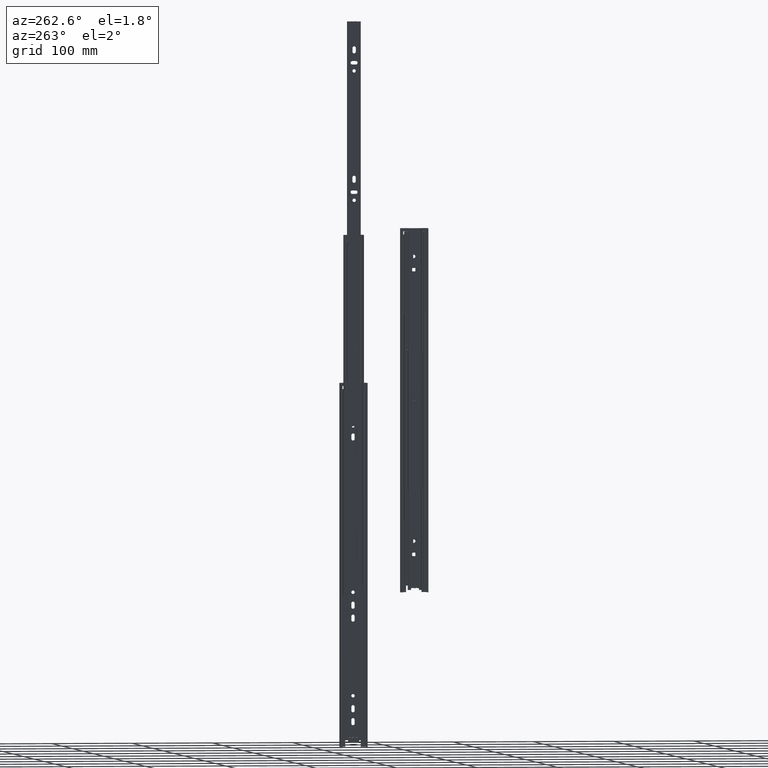
[diagram: clean part render]
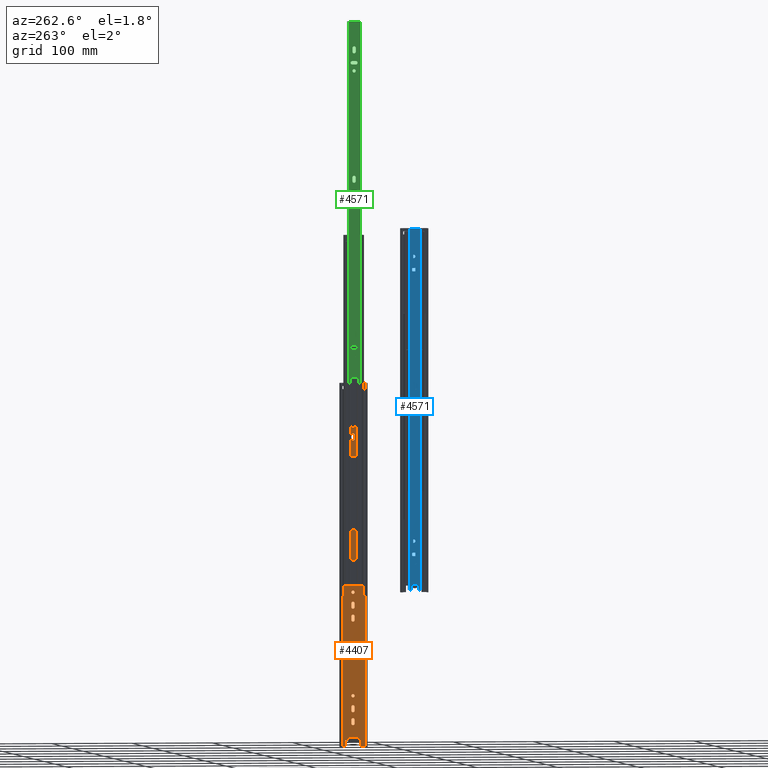
[diagram: same view with three faces highlighted in distinct colors, each labeled with its STEP entity id]
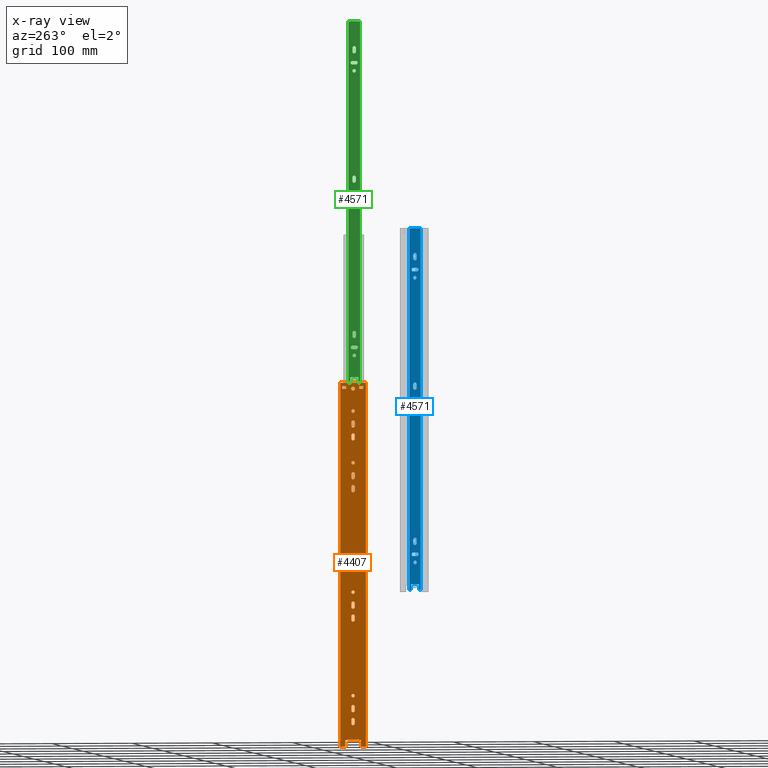
[diagram: x-ray of the same camera — body ghosted, the three highlighted faces saturated]
A machine part, auxiliary view with three faces highlighted in distinct colors.
The next image is the same camera in x-ray (body ghosted, the three faces saturated) — at least one of them is partly hidden behind the body in this view.
Their STEP definitions:

[orange] entity #4407 — the highlighted planar face has unit normal (-1, 0, 0).
#175=FACE_BOUND('',#670,.T.);
#176=FACE_BOUND('',#671,.T.);
#177=FACE_BOUND('',#672,.T.);
#178=FACE_BOUND('',#673,.T.);
#179=FACE_BOUND('',#674,.T.);
#180=FACE_BOUND('',#675,.T.);
#181=FACE_BOUND('',#676,.T.);
#182=FACE_BOUND('',#677,.T.);
#183=FACE_BOUND('',#678,.T.);
#184=FACE_BOUND('',#679,.T.);
#185=FACE_BOUND('',#680,.T.);
#186=FACE_BOUND('',#681,.T.);
#187=FACE_BOUND('',#682,.T.);
#188=FACE_BOUND('',#683,.T.);
#189=FACE_BOUND('',#684,.T.);
#244=CIRCLE('',#4660,2.15);
#245=CIRCLE('',#4661,2.14999999999999);
#246=CIRCLE('',#4662,2.15);
#247=CIRCLE('',#4663,2.15);
#248=CIRCLE('',#4664,2.15);
#249=CIRCLE('',#4665,2.15);
#250=CIRCLE('',#4666,2.15);
#251=CIRCLE('',#4667,2.15);
#252=CIRCLE('',#4668,2.4);
#253=CIRCLE('',#4669,2.15);
#254=CIRCLE('',#4670,2.15);
#255=CIRCLE('',#4671,2.15);
#256=CIRCLE('',#4672,2.15);
#257=CIRCLE('',#4673,2.15);
#258=CIRCLE('',#4674,2.15);
#259=CIRCLE('',#4675,2.15);
#260=CIRCLE('',#4676,2.15);
#261=CIRCLE('',#4677,2.15);
#262=CIRCLE('',#4678,2.15);
#263=CIRCLE('',#4679,2.15);
#264=CIRCLE('',#4680,2.15);
#431=FACE_OUTER_BOUND('',#669,.T.);
#669=EDGE_LOOP('',(#3019,#3020,#3021,#3022,#3023,#3024,#3025,#3026,#3027,
#3028,#3029,#3030));
#670=EDGE_LOOP('',(#3031,#3032,#3033,#3034));
#671=EDGE_LOOP('',(#3035,#3036,#3037,#3038));
#672=EDGE_LOOP('',(#3039,#3040,#3041,#3042));
#673=EDGE_LOOP('',(#3043,#3044,#3045,#3046));
#674=EDGE_LOOP('',(#3047));
#675=EDGE_LOOP('',(#3048,#3049,#3050,#3051));
#676=EDGE_LOOP('',(#3052));
#677=EDGE_LOOP('',(#3053));
#678=EDGE_LOOP('',(#3054));
#679=EDGE_LOOP('',(#3055));
#680=EDGE_LOOP('',(#3056,#3057,#3058,#3059));
#681=EDGE_LOOP('',(#3060,#3061,#3062,#3063));
#682=EDGE_LOOP('',(#3064,#3065,#3066,#3067));
#683=EDGE_LOOP('',(#3068,#3069,#3070,#3071));
#684=EDGE_LOOP('',(#3072,#3073,#3074,#3075));
#973=LINE('',#6519,#1437);
#974=LINE('',#6524,#1438);
#975=LINE('',#6527,#1439);
#976=LINE('',#6529,#1440);
#977=LINE('',#6531,#1441);
#978=LINE('',#6533,#1442);
#979=LINE('',#6535,#1443);
#980=LINE('',#6537,#1444);
#981=LINE('',#6539,#1445);
#982=LINE('',#6541,#1446);
#983=LINE('',#6543,#1447);
#984=LINE('',#6544,#1448);
#985=LINE('',#6549,#1449);
#986=LINE('',#6552,#1450);
#987=LINE('',#6557,#1451);
#988=LINE('',#6560,#1452);
#989=LINE('',#6565,#1453);
#990=LINE('',#6568,#1454);
#991=LINE('',#6573,#1455);
#992=LINE('',#6576,#1456);
#993=LINE('',#6581,#1457);
#994=LINE('',#6583,#1458);
#995=LINE('',#6585,#1459);
#996=LINE('',#6586,#1460);
#997=LINE('',#6597,#1461);
#998=LINE('',#6599,#1462);
#999=LINE('',#6601,#1463);
#1000=LINE('',#6602,#1464);
#1001=LINE('',#6607,#1465);
#1002=LINE('',#6610,#1466);
#1003=LINE('',#6615,#1467);
#1004=LINE('',#6618,#1468);
#1005=LINE('',#6623,#1469);
#1006=LINE('',#6626,#1470);
#1007=LINE('',#6631,#1471);
#1008=LINE('',#6634,#1472);
#1437=VECTOR('',#5139,15.);
#1438=VECTOR('',#5146,1.00000000000001);
#1439=VECTOR('',#5149,1.00000000000001);
#1440=VECTOR('',#5150,2.24999999999883);
#1441=VECTOR('',#5151,7.99999999999997);
#1442=VECTOR('',#5152,6.2500000000009);
#1443=VECTOR('',#5153,450.);
#1444=VECTOR('',#5154,31.9999999999994);
#1445=VECTOR('',#5155,450.);
#1446=VECTOR('',#5156,6.25000000000089);
#1447=VECTOR('',#5157,7.99999999999997);
#1448=VECTOR('',#5158,2.24999999999876);
#1449=VECTOR('',#5161,4.49999999999996);
#1450=VECTOR('',#5164,4.49999999999996);
#1451=VECTOR('',#5167,4.49999999999999);
#1452=VECTOR('',#5170,4.49999999999999);
#1453=VECTOR('',#5173,4.49999999999996);
#1454=VECTOR('',#5176,4.49999999999999);
#1455=VECTOR('',#5179,4.49999999999999);
#1456=VECTOR('',#5182,4.49999999999999);
#1457=VECTOR('',#5185,4.80000000000001);
#1458=VECTOR('',#5186,3.70000000000001);
#1459=VECTOR('',#5187,4.8);
#1460=VECTOR('',#5188,3.70000000000001);
#1461=VECTOR('',#5197,4.8);
#1462=VECTOR('',#5198,3.70000000000001);
#1463=VECTOR('',#5199,4.8);
#1464=VECTOR('',#5200,3.70000000000001);
#1465=VECTOR('',#5203,4.49999999999999);
#1466=VECTOR('',#5206,4.49999999999999);
#1467=VECTOR('',#5209,4.50000000000001);
#1468=VECTOR('',#5212,4.49999999999998);
#1469=VECTOR('',#5215,4.49999999999999);
#1470=VECTOR('',#5218,4.49999999999999);
#1471=VECTOR('',#5221,4.49999999999996);
#1472=VECTOR('',#5224,4.49999999999996);
#1900=VERTEX_POINT('',#6516);
#1901=VERTEX_POINT('',#6518);
#1902=VERTEX_POINT('',#6522);
#1903=VERTEX_POINT('',#6526);
#1904=VERTEX_POINT('',#6528);
#1905=VERTEX_POINT('',#6530);
#1906=VERTEX_POINT('',#6532);
#1907=VERTEX_POINT('',#6534);
#1908=VERTEX_POINT('',#6536);
#1909=VERTEX_POINT('',#6538);
#1910=VERTEX_POINT('',#6540);
#1911=VERTEX_POINT('',#6542);
#1912=VERTEX_POINT('',#6545);
#1913=VERTEX_POINT('',#6546);
#1914=VERTEX_POINT('',#6548);
#1915=VERTEX_POINT('',#6550);
#1916=VERTEX_POINT('',#6553);
#1917=VERTEX_POINT('',#6554);
#1918=VERTEX_POINT('',#6556);
#1919=VERTEX_POINT('',#6558);
#1920=VERTEX_POINT('',#6561);
#1921=VERTEX_POINT('',#6562);
#1922=VERTEX_POINT('',#6564);
#1923=VERTEX_POINT('',#6566);
#1924=VERTEX_POINT('',#6569);
#1925=VERTEX_POINT('',#6570);
#1926=VERTEX_POINT('',#6572);
#1927=VERTEX_POINT('',#6574);
#1928=VERTEX_POINT('',#6577);
#1929=VERTEX_POINT('',#6579);
#1930=VERTEX_POINT('',#6580);
#1931=VERTEX_POINT('',#6582);
#1932=VERTEX_POINT('',#6584);
#1933=VERTEX_POINT('',#6587);
#1934=VERTEX_POINT('',#6589);
#1935=VERTEX_POINT('',#6591);
#1936=VERTEX_POINT('',#6593);
#1937=VERTEX_POINT('',#6595);
#1938=VERTEX_POINT('',#6596);
#1939=VERTEX_POINT('',#6598);
#1940=VERTEX_POINT('',#6600);
#1941=VERTEX_POINT('',#6603);
#1942=VERTEX_POINT('',#6604);
#1943=VERTEX_POINT('',#6606);
#1944=VERTEX_POINT('',#6608);
#1945=VERTEX_POINT('',#6611);
#1946=VERTEX_POINT('',#6612);
#1947=VERTEX_POINT('',#6614);
#1948=VERTEX_POINT('',#6616);
#1949=VERTEX_POINT('',#6619);
#1950=VERTEX_POINT('',#6620);
#1951=VERTEX_POINT('',#6622);
#1952=VERTEX_POINT('',#6624);
#1953=VERTEX_POINT('',#6627);
#1954=VERTEX_POINT('',#6628);
#1955=VERTEX_POINT('',#6630);
#1956=VERTEX_POINT('',#6632);
#2338=EDGE_CURVE('',#1901,#1900,#973,.T.);
#2341=EDGE_CURVE('',#1902,#1901,#974,.T.);
#2342=EDGE_CURVE('',#1900,#1903,#975,.T.);
#2343=EDGE_CURVE('',#1903,#1904,#976,.T.);
#2344=EDGE_CURVE('',#1904,#1905,#977,.T.);
#2345=EDGE_CURVE('',#1906,#1905,#978,.T.);
#2346=EDGE_CURVE('',#1906,#1907,#979,.T.);
#2347=EDGE_CURVE('',#1908,#1907,#980,.T.);
#2348=EDGE_CURVE('',#1909,#1908,#981,.T.);
#2349=EDGE_CURVE('',#1910,#1909,#982,.T.);
#2350=EDGE_CURVE('',#1910,#1911,#983,.T.);
#2351=EDGE_CURVE('',#1911,#1902,#984,.T.);
#2352=EDGE_CURVE('',#1912,#1913,#244,.T.);
#2353=EDGE_CURVE('',#1913,#1914,#985,.T.);
#2354=EDGE_CURVE('',#1914,#1915,#245,.T.);
#2355=EDGE_CURVE('',#1915,#1912,#986,.T.);
#2356=EDGE_CURVE('',#1916,#1917,#246,.T.);
#2357=EDGE_CURVE('',#1917,#1918,#987,.T.);
#2358=EDGE_CURVE('',#1918,#1919,#247,.T.);
#2359=EDGE_CURVE('',#1919,#1916,#988,.T.);
#2360=EDGE_CURVE('',#1920,#1921,#248,.T.);
#2361=EDGE_CURVE('',#1921,#1922,#989,.T.);
#2362=EDGE_CURVE('',#1922,#1923,#249,.T.);
#2363=EDGE_CURVE('',#1923,#1920,#990,.T.);
#2364=EDGE_CURVE('',#1924,#1925,#250,.T.);
#2365=EDGE_CURVE('',#1925,#1926,#991,.T.);
#2366=EDGE_CURVE('',#1926,#1927,#251,.T.);
#2367=EDGE_CURVE('',#1927,#1924,#992,.T.);
#2368=EDGE_CURVE('',#1928,#1928,#252,.T.);
#2369=EDGE_CURVE('',#1929,#1930,#993,.T.);
#2370=EDGE_CURVE('',#1930,#1931,#994,.T.);
#2371=EDGE_CURVE('',#1931,#1932,#995,.T.);
#2372=EDGE_CURVE('',#1932,#1929,#996,.T.);
#2373=EDGE_CURVE('',#1933,#1933,#253,.T.);
#2374=EDGE_CURVE('',#1934,#1934,#254,.T.);
#2375=EDGE_CURVE('',#1935,#1935,#255,.T.);
#2376=EDGE_CURVE('',#1936,#1936,#256,.T.);
#2377=EDGE_CURVE('',#1937,#1938,#997,.T.);
#2378=EDGE_CURVE('',#1938,#1939,#998,.T.);
#2379=EDGE_CURVE('',#1939,#1940,#999,.T.);
#2380=EDGE_CURVE('',#1940,#1937,#1000,.T.);
#2381=EDGE_CURVE('',#1941,#1942,#257,.T.);
#2382=EDGE_CURVE('',#1942,#1943,#1001,.T.);
#2383=EDGE_CURVE('',#1943,#1944,#258,.T.);
#2384=EDGE_CURVE('',#1944,#1941,#1002,.T.);
#2385=EDGE_CURVE('',#1945,#1946,#259,.T.);
#2386=EDGE_CURVE('',#1946,#1947,#1003,.T.);
#2387=EDGE_CURVE('',#1947,#1948,#260,.T.);
#2388=EDGE_CURVE('',#1948,#1945,#1004,.T.);
#2389=EDGE_CURVE('',#1949,#1950,#261,.T.);
#2390=EDGE_CURVE('',#1950,#1951,#1005,.T.);
#2391=EDGE_CURVE('',#1951,#1952,#262,.T.);
#2392=EDGE_CURVE('',#1952,#1949,#1006,.T.);
#2393=EDGE_CURVE('',#1953,#1954,#263,.T.);
#2394=EDGE_CURVE('',#1954,#1955,#1007,.T.);
#2395=EDGE_CURVE('',#1955,#1956,#264,.T.);
#2396=EDGE_CURVE('',#1956,#1953,#1008,.T.);
#3019=ORIENTED_EDGE('',*,*,#2341,.T.);
#3020=ORIENTED_EDGE('',*,*,#2338,.T.);
#3021=ORIENTED_EDGE('',*,*,#2342,.T.);
#3022=ORIENTED_EDGE('',*,*,#2343,.T.);
#3023=ORIENTED_EDGE('',*,*,#2344,.T.);
#3024=ORIENTED_EDGE('',*,*,#2345,.F.);
#3025=ORIENTED_EDGE('',*,*,#2346,.T.);
#3026=ORIENTED_EDGE('',*,*,#2347,.F.);
#3027=ORIENTED_EDGE('',*,*,#2348,.F.);
#3028=ORIENTED_EDGE('',*,*,#2349,.F.);
#3029=ORIENTED_EDGE('',*,*,#2350,.T.);
#3030=ORIENTED_EDGE('',*,*,#2351,.T.);
#3031=ORIENTED_EDGE('',*,*,#2352,.T.);
#3032=ORIENTED_EDGE('',*,*,#2353,.T.);
#3033=ORIENTED_EDGE('',*,*,#2354,.T.);
#3034=ORIENTED_EDGE('',*,*,#2355,.T.);
#3035=ORIENTED_EDGE('',*,*,#2356,.T.);
#3036=ORIENTED_EDGE('',*,*,#2357,.T.);
#3037=ORIENTED_EDGE('',*,*,#2358,.T.);
#3038=ORIENTED_EDGE('',*,*,#2359,.T.);
#3039=ORIENTED_EDGE('',*,*,#2360,.T.);
#3040=ORIENTED_EDGE('',*,*,#2361,.T.);
#3041=ORIENTED_EDGE('',*,*,#2362,.T.);
#3042=ORIENTED_EDGE('',*,*,#2363,.T.);
#3043=ORIENTED_EDGE('',*,*,#2364,.T.);
#3044=ORIENTED_EDGE('',*,*,#2365,.T.);
#3045=ORIENTED_EDGE('',*,*,#2366,.T.);
#3046=ORIENTED_EDGE('',*,*,#2367,.T.);
#3047=ORIENTED_EDGE('',*,*,#2368,.T.);
#3048=ORIENTED_EDGE('',*,*,#2369,.T.);
#3049=ORIENTED_EDGE('',*,*,#2370,.T.);
#3050=ORIENTED_EDGE('',*,*,#2371,.T.);
#3051=ORIENTED_EDGE('',*,*,#2372,.T.);
#3052=ORIENTED_EDGE('',*,*,#2373,.T.);
#3053=ORIENTED_EDGE('',*,*,#2374,.T.);
#3054=ORIENTED_EDGE('',*,*,#2375,.T.);
#3055=ORIENTED_EDGE('',*,*,#2376,.T.);
#3056=ORIENTED_EDGE('',*,*,#2377,.T.);
#3057=ORIENTED_EDGE('',*,*,#2378,.T.);
#3058=ORIENTED_EDGE('',*,*,#2379,.T.);
#3059=ORIENTED_EDGE('',*,*,#2380,.T.);
#3060=ORIENTED_EDGE('',*,*,#2381,.T.);
#3061=ORIENTED_EDGE('',*,*,#2382,.T.);
#3062=ORIENTED_EDGE('',*,*,#2383,.T.);
#3063=ORIENTED_EDGE('',*,*,#2384,.T.);
#3064=ORIENTED_EDGE('',*,*,#2385,.T.);
#3065=ORIENTED_EDGE('',*,*,#2386,.T.);
#3066=ORIENTED_EDGE('',*,*,#2387,.T.);
#3067=ORIENTED_EDGE('',*,*,#2388,.T.);
#3068=ORIENTED_EDGE('',*,*,#2389,.T.);
#3069=ORIENTED_EDGE('',*,*,#2390,.T.);
#3070=ORIENTED_EDGE('',*,*,#2391,.T.);
#3071=ORIENTED_EDGE('',*,*,#2392,.T.);
#3072=ORIENTED_EDGE('',*,*,#2393,.T.);
#3073=ORIENTED_EDGE('',*,*,#2394,.T.);
#3074=ORIENTED_EDGE('',*,*,#2395,.T.);
#3075=ORIENTED_EDGE('',*,*,#2396,.T.);
#4258=PLANE('',#4659);
#4407=ADVANCED_FACE('',(#431,#175,#176,#177,#178,#179,#180,#181,#182,#183,
#184,#185,#186,#187,#188,#189),#4258,.T.);
#4659=AXIS2_PLACEMENT_3D('',#6525,#5147,#5148);
#4660=AXIS2_PLACEMENT_3D('',#6547,#5159,#5160);
#4661=AXIS2_PLACEMENT_3D('',#6551,#5162,#5163);
#4662=AXIS2_PLACEMENT_3D('',#6555,#5165,#5166);
#4663=AXIS2_PLACEMENT_3D('',#6559,#5168,#5169);
#4664=AXIS2_PLACEMENT_3D('',#6563,#5171,#5172);
#4665=AXIS2_PLACEMENT_3D('',#6567,#5174,#5175);
#4666=AXIS2_PLACEMENT_3D('',#6571,#5177,#5178);
#4667=AXIS2_PLACEMENT_3D('',#6575,#5180,#5181);
#4668=AXIS2_PLACEMENT_3D('',#6578,#5183,#5184);
#4669=AXIS2_PLACEMENT_3D('',#6588,#5189,#5190);
#4670=AXIS2_PLACEMENT_3D('',#6590,#5191,#5192);
#4671=AXIS2_PLACEMENT_3D('',#6592,#5193,#5194);
#4672=AXIS2_PLACEMENT_3D('',#6594,#5195,#5196);
#4673=AXIS2_PLACEMENT_3D('',#6605,#5201,#5202);
#4674=AXIS2_PLACEMENT_3D('',#6609,#5204,#5205);
#4675=AXIS2_PLACEMENT_3D('',#6613,#5207,#5208);
#4676=AXIS2_PLACEMENT_3D('',#6617,#5210,#5211);
#4677=AXIS2_PLACEMENT_3D('',#6621,#5213,#5214);
#4678=AXIS2_PLACEMENT_3D('',#6625,#5216,#5217);
#4679=AXIS2_PLACEMENT_3D('',#6629,#5219,#5220);
#4680=AXIS2_PLACEMENT_3D('',#6633,#5222,#5223);
#5139=DIRECTION('',(0.,-1.,-6.88338275267587E-14));
#5146=DIRECTION('',(0.,-6.88338275267587E-14,1.));
#5147=DIRECTION('center_axis',(-1.,0.,0.));
#5148=DIRECTION('ref_axis',(0.,-1.,0.));
#5149=DIRECTION('',(0.,0.,-1.));
#5150=DIRECTION('',(0.,-1.,0.));
#5151=DIRECTION('',(0.,5.5511151231258E-16,-1.));
#5152=DIRECTION('',(0.,1.,0.));
#5153=DIRECTION('',(0.,0.,1.));
#5154=DIRECTION('',(0.,-1.,0.));
#5155=DIRECTION('',(0.,0.,1.));
#5156=DIRECTION('',(0.,1.,0.));
#5157=DIRECTION('',(0.,0.,1.));
#5158=DIRECTION('',(0.,-1.,0.));
#5159=DIRECTION('center_axis',(1.,0.,0.));
#5160=DIRECTION('ref_axis',(0.,-1.,0.));
#5161=DIRECTION('',(0.,-9.86864910777926E-15,-1.));
#5162=DIRECTION('center_axis',(1.,0.,0.));
#5163=DIRECTION('ref_axis',(0.,1.,0.));
#5164=DIRECTION('',(0.,4.93432455388963E-15,1.));
#5165=DIRECTION('center_axis',(1.,0.,0.));
#5166=DIRECTION('ref_axis',(0.,-1.,0.));
#5167=DIRECTION('',(0.,0.,-1.));
#5168=DIRECTION('center_axis',(1.,0.,0.));
#5169=DIRECTION('ref_axis',(0.,1.,0.));
#5170=DIRECTION('',(0.,0.,1.));
#5171=DIRECTION('center_axis',(1.,0.,0.));
#5172=DIRECTION('ref_axis',(0.,-1.,-8.26212483441976E-15));
#5173=DIRECTION('',(0.,0.,-1.));
#5174=DIRECTION('center_axis',(1.,0.,0.));
#5175=DIRECTION('ref_axis',(0.,1.,-1.65242496688395E-14));
#5176=DIRECTION('',(0.,0.,1.));
#5177=DIRECTION('center_axis',(1.,0.,0.));
#5178=DIRECTION('ref_axis',(0.,-1.,-4.13106241720989E-15));
#5179=DIRECTION('',(0.,0.,-1.));
#5180=DIRECTION('center_axis',(1.,0.,0.));
#5181=DIRECTION('ref_axis',(0.,1.,0.));
#5182=DIRECTION('',(0.,-4.93432455388958E-16,1.));
#5183=DIRECTION('center_axis',(1.,0.,0.));
#5184=DIRECTION('ref_axis',(0.,0.,1.));
#5185=DIRECTION('',(0.,-1.,-1.15648231731787E-16));
#5186=DIRECTION('',(0.,0.,-1.));
#5187=DIRECTION('',(0.,1.,-2.31296463463574E-16));
#5188=DIRECTION('',(0.,1.20024110770287E-15,1.));
#5189=DIRECTION('center_axis',(1.,0.,0.));
#5190=DIRECTION('ref_axis',(0.,0.,1.));
#5191=DIRECTION('center_axis',(1.,0.,0.));
#5192=DIRECTION('ref_axis',(0.,0.,1.));
#5193=DIRECTION('center_axis',(1.,0.,0.));
#5194=DIRECTION('ref_axis',(0.,0.,1.));
#5195=DIRECTION('center_axis',(1.,0.,0.));
#5196=DIRECTION('ref_axis',(0.,0.,1.));
#5197=DIRECTION('',(0.,-1.,-5.78241158658936E-16));
#5198=DIRECTION('',(0.,0.,-1.));
#5199=DIRECTION('',(0.,1.,0.));
#5200=DIRECTION('',(0.,0.,1.));
#5201=DIRECTION('center_axis',(1.,0.,0.));
#5202=DIRECTION('ref_axis',(0.,-1.,0.));
#5203=DIRECTION('',(0.,1.48029736616687E-15,-1.));
#5204=DIRECTION('center_axis',(1.,0.,0.));
#5205=DIRECTION('ref_axis',(0.,1.,0.));
#5206=DIRECTION('',(0.,-1.97372982155584E-15,1.));
#5207=DIRECTION('center_axis',(1.,0.,0.));
#5208=DIRECTION('ref_axis',(0.,-1.,0.));
#5209=DIRECTION('',(0.,1.97372982155583E-15,1.));
#5210=DIRECTION('center_axis',(1.,0.,0.));
#5211=DIRECTION('ref_axis',(0.,1.,8.26212483441975E-15));
#5212=DIRECTION('',(0.,-1.48029736616688E-15,-1.));
#5213=DIRECTION('center_axis',(1.,0.,0.));
#5214=DIRECTION('ref_axis',(0.,-1.,0.));
#5215=DIRECTION('',(0.,0.,1.));
#5216=DIRECTION('center_axis',(1.,0.,0.));
#5217=DIRECTION('ref_axis',(0.,1.,0.));
#5218=DIRECTION('',(0.,-4.93432455388959E-16,-1.));
#5219=DIRECTION('center_axis',(1.,0.,0.));
#5220=DIRECTION('ref_axis',(0.,-1.,0.));
#5221=DIRECTION('',(0.,-9.86864910777926E-16,1.));
#5222=DIRECTION('center_axis',(1.,0.,0.));
#5223=DIRECTION('ref_axis',(0.,1.,0.));
#5224=DIRECTION('',(0.,4.93432455388963E-16,-1.));
#6516=CARTESIAN_POINT('',(1.05129643338628,19.1493539975594,-216.));
#6518=CARTESIAN_POINT('',(1.05129643338628,34.1493539975594,-215.999999999999));
#6519=CARTESIAN_POINT('',(1.05129643338628,37.8683758177017,-215.999999999999));
#6522=CARTESIAN_POINT('',(1.05129643338628,34.1493539975594,-216.999999999999));
#6524=CARTESIAN_POINT('',(1.05129643338628,34.1493539975594,-216.999999999999));
#6525=CARTESIAN_POINT('Origin',(1.05129643338628,42.6493539975591,0.));
#6526=CARTESIAN_POINT('',(1.05129643338628,19.1493539975594,-217.));
#6527=CARTESIAN_POINT('',(1.05129643338628,19.1493539975594,-217.));
#6528=CARTESIAN_POINT('',(1.05129643338628,16.8993539975605,-217.));
#6529=CARTESIAN_POINT('',(1.05129643338628,29.7743539975598,-217.));
#6530=CARTESIAN_POINT('',(1.05129643338628,16.8993539975606,-225.));
#6531=CARTESIAN_POINT('',(1.05129643338628,16.8993539975605,-112.5));
#6532=CARTESIAN_POINT('',(1.05129643338628,10.6493539975597,-225.));
#6533=CARTESIAN_POINT('',(1.05129643338628,42.6493539975591,-225.));
#6534=CARTESIAN_POINT('',(1.05129643338628,10.6493539975597,225.));
#6535=CARTESIAN_POINT('',(1.05129643338628,10.6493539975597,0.));
#6536=CARTESIAN_POINT('',(1.05129643338628,42.6493539975591,225.));
#6537=CARTESIAN_POINT('',(1.05129643338628,42.6493539975591,225.));
#6538=CARTESIAN_POINT('',(1.05129643338628,42.6493539975591,-225.));
#6539=CARTESIAN_POINT('',(1.05129643338628,42.6493539975591,0.));
#6540=CARTESIAN_POINT('',(1.05129643338628,36.3993539975582,-225.));
#6541=CARTESIAN_POINT('',(1.05129643338628,42.6493539975591,-225.));
#6542=CARTESIAN_POINT('',(1.05129643338628,36.3993539975582,-217.));
#6543=CARTESIAN_POINT('',(1.05129643338628,36.3993539975582,-108.5));
#6544=CARTESIAN_POINT('',(1.05129643338628,29.7743539975598,-217.));
#6545=CARTESIAN_POINT('',(1.05129643338628,28.7993539975594,-191.75));
#6546=CARTESIAN_POINT('',(1.05129643338628,24.49935399756,-191.75));
#6547=CARTESIAN_POINT('Origin',(1.05129643338628,26.6493539975594,-191.75));
#6548=CARTESIAN_POINT('',(1.05129643338628,24.4993539975599,-196.25));
#6549=CARTESIAN_POINT('',(1.05129643338628,24.4993539975609,-98.1249999999999));
#6550=CARTESIAN_POINT('',(1.05129643338628,28.7993539975594,-196.25));
#6551=CARTESIAN_POINT('Origin',(1.05129643338628,26.6493539975594,-196.25));
#6552=CARTESIAN_POINT('',(1.05129643338628,28.7993539975599,-95.875));
#6553=CARTESIAN_POINT('',(1.05129643338628,28.7993539975594,-63.7500000000001));
#6554=CARTESIAN_POINT('',(1.05129643338628,24.4993539975594,-63.7500000000001));
#6555=CARTESIAN_POINT('Origin',(1.05129643338628,26.6493539975594,-63.7500000000001));
#6556=CARTESIAN_POINT('',(1.05129643338628,24.4993539975594,-68.2500000000001));
#6557=CARTESIAN_POINT('',(1.05129643338628,24.4993539975594,-34.125));
#6558=CARTESIAN_POINT('',(1.05129643338628,28.7993539975594,-68.2500000000001));
#6559=CARTESIAN_POINT('Origin',(1.05129643338628,26.6493539975594,-68.2500000000001));
#6560=CARTESIAN_POINT('',(1.05129643338628,28.7993539975594,-31.875));
#6561=CARTESIAN_POINT('',(1.05129643338628,28.7993539975594,96.25));
#6562=CARTESIAN_POINT('',(1.05129643338628,24.4993539975594,96.25));
#6563=CARTESIAN_POINT('Origin',(1.05129643338628,26.6493539975594,96.25));
#6564=CARTESIAN_POINT('',(1.05129643338628,24.4993539975594,91.7500000000001));
#6565=CARTESIAN_POINT('',(1.05129643338628,24.4993539975594,45.875));
#6566=CARTESIAN_POINT('',(1.05129643338628,28.7993539975594,91.75));
#6567=CARTESIAN_POINT('Origin',(1.05129643338628,26.6493539975594,91.75));
#6568=CARTESIAN_POINT('',(1.05129643338628,28.7993539975594,48.125));
#6569=CARTESIAN_POINT('',(1.05129643338628,28.7993539975594,160.25));
#6570=CARTESIAN_POINT('',(1.05129643338628,24.4993539975594,160.25));
#6571=CARTESIAN_POINT('Origin',(1.05129643338628,26.6493539975594,160.25));
#6572=CARTESIAN_POINT('',(1.05129643338628,24.4993539975594,155.75));
#6573=CARTESIAN_POINT('',(1.05129643338628,24.4993539975594,77.875));
#6574=CARTESIAN_POINT('',(1.05129643338628,28.7993539975594,155.75));
#6575=CARTESIAN_POINT('Origin',(1.05129643338628,26.6493539975594,155.75));
#6576=CARTESIAN_POINT('',(1.05129643338628,28.7993539975594,80.125));
#6577=CARTESIAN_POINT('',(1.05129643338628,26.6493539975594,215.2));
#6578=CARTESIAN_POINT('Origin',(1.05129643338628,26.6493539975594,217.6));
#6579=CARTESIAN_POINT('',(1.05129643338628,40.1493539975582,221.));
#6580=CARTESIAN_POINT('',(1.05129643338628,35.3493539975582,221.));
#6581=CARTESIAN_POINT('',(1.05129643338628,38.9993539975586,221.));
#6582=CARTESIAN_POINT('',(1.05129643338628,35.3493539975582,217.3));
#6583=CARTESIAN_POINT('',(1.05129643338628,35.3493539975582,108.65));
#6584=CARTESIAN_POINT('',(1.05129643338628,40.1493539975582,217.3));
#6585=CARTESIAN_POINT('',(1.05129643338628,41.3993539975587,217.3));
#6586=CARTESIAN_POINT('',(1.05129643338628,40.1493539975581,110.5));
#6587=CARTESIAN_POINT('',(1.05129643338628,26.6493539975594,-36.15));
#6588=CARTESIAN_POINT('Origin',(1.05129643338628,26.6493539975594,-34.));
#6589=CARTESIAN_POINT('',(1.05129643338628,26.6493539975594,187.85));
#6590=CARTESIAN_POINT('Origin',(1.05129643338628,26.6493539975594,190.));
#6591=CARTESIAN_POINT('',(1.05129643338628,26.6493539975594,123.85));
#6592=CARTESIAN_POINT('Origin',(1.05129643338628,26.6493539975594,126.));
#6593=CARTESIAN_POINT('',(1.05129643338628,26.6493539975594,-164.15));
#6594=CARTESIAN_POINT('Origin',(1.05129643338628,26.6493539975594,-162.));
#6595=CARTESIAN_POINT('',(1.05129643338628,18.9493539975597,221.));
#6596=CARTESIAN_POINT('',(1.05129643338628,14.1493539975597,221.));
#6597=CARTESIAN_POINT('',(1.05129643338628,28.3993539975593,221.));
#6598=CARTESIAN_POINT('',(1.05129643338628,14.1493539975597,217.3));
#6599=CARTESIAN_POINT('',(1.05129643338628,14.1493539975597,108.65));
#6600=CARTESIAN_POINT('',(1.05129643338628,18.9493539975597,217.3));
#6601=CARTESIAN_POINT('',(1.05129643338628,30.7993539975594,217.3));
#6602=CARTESIAN_POINT('',(1.05129643338628,18.9493539975597,110.5));
#6603=CARTESIAN_POINT('',(1.05129643338628,28.7993539975594,176.25));
#6604=CARTESIAN_POINT('',(1.05129643338628,24.4993539975594,176.25));
#6605=CARTESIAN_POINT('Origin',(1.05129643338628,26.6493539975594,176.25));
#6606=CARTESIAN_POINT('',(1.05129643338628,24.4993539975594,171.75));
#6607=CARTESIAN_POINT('',(1.05129643338628,24.4993539975595,85.875));
#6608=CARTESIAN_POINT('',(1.05129643338628,28.7993539975594,171.75));
#6609=CARTESIAN_POINT('Origin',(1.05129643338628,26.6493539975594,171.75));
#6610=CARTESIAN_POINT('',(1.05129643338628,28.7993539975595,88.125));
#6611=CARTESIAN_POINT('',(1.05129643338628,24.4993539975594,107.75));
#6612=CARTESIAN_POINT('',(1.05129643338628,28.7993539975594,107.75));
#6613=CARTESIAN_POINT('Origin',(1.05129643338628,26.6493539975594,107.75));
#6614=CARTESIAN_POINT('',(1.05129643338628,28.7993539975594,112.25));
#6615=CARTESIAN_POINT('',(1.05129643338628,28.7993539975593,56.125));
#6616=CARTESIAN_POINT('',(1.05129643338628,24.4993539975594,112.25));
#6617=CARTESIAN_POINT('Origin',(1.05129643338628,26.6493539975594,112.25));
#6618=CARTESIAN_POINT('',(1.05129643338628,24.4993539975593,53.875));
#6619=CARTESIAN_POINT('',(1.05129643338628,24.4993539975594,-52.25));
#6620=CARTESIAN_POINT('',(1.05129643338628,28.7993539975594,-52.25));
#6621=CARTESIAN_POINT('Origin',(1.05129643338628,26.6493539975594,-52.25));
#6622=CARTESIAN_POINT('',(1.05129643338628,28.7993539975594,-47.75));
#6623=CARTESIAN_POINT('',(1.05129643338628,28.7993539975594,-23.875));
#6624=CARTESIAN_POINT('',(1.05129643338628,24.4993539975594,-47.75));
#6625=CARTESIAN_POINT('Origin',(1.05129643338628,26.6493539975594,-47.75));
#6626=CARTESIAN_POINT('',(1.05129643338628,24.4993539975594,-26.125));
#6627=CARTESIAN_POINT('',(1.05129643338628,24.4993539975596,-180.25));
#6628=CARTESIAN_POINT('',(1.05129643338628,28.7993539975594,-180.25));
#6629=CARTESIAN_POINT('Origin',(1.05129643338628,26.6493539975594,-180.25));
#6630=CARTESIAN_POINT('',(1.05129643338628,28.7993539975594,-175.75));
#6631=CARTESIAN_POINT('',(1.05129643338628,28.7993539975593,-87.875));
#6632=CARTESIAN_POINT('',(1.05129643338628,24.4993539975596,-175.75));
#6633=CARTESIAN_POINT('Origin',(1.05129643338628,26.6493539975594,-175.75));
#6634=CARTESIAN_POINT('',(1.05129643338628,24.4993539975596,-90.125));

[blue] entity #4571 — the highlighted planar face has unit normal (-1, 0, 0).
#224=FACE_BOUND('',#883,.T.);
#225=FACE_BOUND('',#884,.T.);
#226=FACE_BOUND('',#885,.T.);
#227=FACE_BOUND('',#886,.T.);
#228=FACE_BOUND('',#887,.T.);
#229=FACE_BOUND('',#888,.T.);
#230=FACE_BOUND('',#889,.T.);
#231=FACE_BOUND('',#890,.T.);
#232=FACE_BOUND('',#891,.T.);
#328=CIRCLE('',#4866,2.15);
#330=CIRCLE('',#4870,2.15);
#332=CIRCLE('',#4874,2.15);
#334=CIRCLE('',#4878,2.15);
#336=CIRCLE('',#4882,2.15);
#338=CIRCLE('',#4886,2.14999999999995);
#340=CIRCLE('',#4890,2.15);
#342=CIRCLE('',#4893,2.15);
#344=CIRCLE('',#4896,2.15);
#346=CIRCLE('',#4899,2.15);
#348=CIRCLE('',#4903,2.15);
#350=CIRCLE('',#4907,2.15);
#352=CIRCLE('',#4911,2.15);
#354=CIRCLE('',#4915,2.15000000000001);
#356=CIRCLE('',#4919,2.14999999999999);
#595=FACE_OUTER_BOUND('',#882,.T.);
#882=EDGE_LOOP('',(#3888,#3889,#3890,#3891,#3892,#3893,#3894,#3895));
#883=EDGE_LOOP('',(#3896,#3897,#3898,#3899));
#884=EDGE_LOOP('',(#3900,#3901,#3902,#3903));
#885=EDGE_LOOP('',(#3904,#3905,#3906,#3907));
#886=EDGE_LOOP('',(#3908));
#887=EDGE_LOOP('',(#3909));
#888=EDGE_LOOP('',(#3910));
#889=EDGE_LOOP('',(#3911,#3912,#3913,#3914));
#890=EDGE_LOOP('',(#3915,#3916,#3917,#3918));
#891=EDGE_LOOP('',(#3919,#3920,#3921,#3922));
#1219=LINE('',#7204,#1683);
#1223=LINE('',#7214,#1687);
#1227=LINE('',#7228,#1691);
#1231=LINE('',#7238,#1695);
#1235=LINE('',#7252,#1699);
#1239=LINE('',#7262,#1703);
#1243=LINE('',#7291,#1707);
#1247=LINE('',#7301,#1711);
#1251=LINE('',#7315,#1715);
#1255=LINE('',#7325,#1719);
#1259=LINE('',#7339,#1723);
#1263=LINE('',#7349,#1727);
#1266=LINE('',#7357,#1730);
#1269=LINE('',#7363,#1733);
#1273=LINE('',#7370,#1737);
#1274=LINE('',#7373,#1738);
#1285=LINE('',#7409,#1749);
#1286=LINE('',#7412,#1750);
#1301=LINE('',#7457,#1765);
#1302=LINE('',#7459,#1766);
#1683=VECTOR('',#5809,4.50000000000003);
#1687=VECTOR('',#5821,4.50000000000003);
#1691=VECTOR('',#5833,4.5);
#1695=VECTOR('',#5845,4.5);
#1699=VECTOR('',#5857,4.5);
#1703=VECTOR('',#5869,4.5);
#1707=VECTOR('',#5899,4.50000000000003);
#1711=VECTOR('',#5911,4.50000000000003);
#1715=VECTOR('',#5923,4.50000000000001);
#1719=VECTOR('',#5935,4.50000000000001);
#1723=VECTOR('',#5947,4.50000000000003);
#1727=VECTOR('',#5959,4.50000000000003);
#1730=VECTOR('',#5964,10.);
#1733=VECTOR('',#5969,7.00000000000003);
#1737=VECTOR('',#5975,7.00000000000003);
#1738=VECTOR('',#5978,2.15000000000211);
#1749=VECTOR('',#6009,2.15000000000211);
#1750=VECTOR('',#6012,447.);
#1765=VECTOR('',#6065,447.);
#1766=VECTOR('',#6068,14.3000000000042);
#2125=VERTEX_POINT('',#7195);
#2126=VERTEX_POINT('',#7197);
#2128=VERTEX_POINT('',#7203);
#2130=VERTEX_POINT('',#7209);
#2133=VERTEX_POINT('',#7219);
#2134=VERTEX_POINT('',#7221);
#2136=VERTEX_POINT('',#7227);
#2138=VERTEX_POINT('',#7233);
#2141=VERTEX_POINT('',#7243);
#2142=VERTEX_POINT('',#7245);
#2144=VERTEX_POINT('',#7251);
#2146=VERTEX_POINT('',#7257);
#2148=VERTEX_POINT('',#7266);
#2150=VERTEX_POINT('',#7271);
#2152=VERTEX_POINT('',#7276);
#2155=VERTEX_POINT('',#7282);
#2156=VERTEX_POINT('',#7284);
#2158=VERTEX_POINT('',#7290);
#2160=VERTEX_POINT('',#7296);
#2163=VERTEX_POINT('',#7306);
#2164=VERTEX_POINT('',#7308);
#2166=VERTEX_POINT('',#7314);
#2168=VERTEX_POINT('',#7320);
#2171=VERTEX_POINT('',#7330);
#2172=VERTEX_POINT('',#7332);
#2174=VERTEX_POINT('',#7338);
#2176=VERTEX_POINT('',#7344);
#2179=VERTEX_POINT('',#7354);
#2180=VERTEX_POINT('',#7356);
#2182=VERTEX_POINT('',#7362);
#2184=VERTEX_POINT('',#7368);
#2185=VERTEX_POINT('',#7372);
#2200=VERTEX_POINT('',#7407);
#2201=VERTEX_POINT('',#7411);
#2212=VERTEX_POINT('',#7455);
#2668=EDGE_CURVE('',#2126,#2125,#328,.T.);
#2671=EDGE_CURVE('',#2128,#2126,#1219,.T.);
#2674=EDGE_CURVE('',#2130,#2128,#330,.T.);
#2677=EDGE_CURVE('',#2125,#2130,#1223,.T.);
#2680=EDGE_CURVE('',#2134,#2133,#332,.T.);
#2683=EDGE_CURVE('',#2136,#2134,#1227,.T.);
#2686=EDGE_CURVE('',#2138,#2136,#334,.T.);
#2689=EDGE_CURVE('',#2133,#2138,#1231,.T.);
#2692=EDGE_CURVE('',#2142,#2141,#336,.T.);
#2695=EDGE_CURVE('',#2144,#2142,#1235,.T.);
#2698=EDGE_CURVE('',#2146,#2144,#338,.T.);
#2701=EDGE_CURVE('',#2141,#2146,#1239,.T.);
#2703=EDGE_CURVE('',#2148,#2148,#340,.T.);
#2705=EDGE_CURVE('',#2150,#2150,#342,.T.);
#2707=EDGE_CURVE('',#2152,#2152,#344,.T.);
#2710=EDGE_CURVE('',#2156,#2155,#346,.T.);
#2713=EDGE_CURVE('',#2158,#2156,#1243,.T.);
#2716=EDGE_CURVE('',#2160,#2158,#348,.T.);
#2719=EDGE_CURVE('',#2155,#2160,#1247,.T.);
#2722=EDGE_CURVE('',#2164,#2163,#350,.T.);
#2725=EDGE_CURVE('',#2166,#2164,#1251,.T.);
#2728=EDGE_CURVE('',#2168,#2166,#352,.T.);
#2731=EDGE_CURVE('',#2163,#2168,#1255,.T.);
#2734=EDGE_CURVE('',#2172,#2171,#354,.T.);
#2737=EDGE_CURVE('',#2174,#2172,#1259,.T.);
#2740=EDGE_CURVE('',#2176,#2174,#356,.T.);
#2743=EDGE_CURVE('',#2171,#2176,#1263,.T.);
#2746=EDGE_CURVE('',#2180,#2179,#1266,.T.);
#2749=EDGE_CURVE('',#2182,#2180,#1269,.T.);
#2753=EDGE_CURVE('',#2179,#2184,#1273,.T.);
#2754=EDGE_CURVE('',#2182,#2185,#1274,.T.);
#2773=EDGE_CURVE('',#2200,#2184,#1285,.T.);
#2774=EDGE_CURVE('',#2201,#2185,#1286,.T.);
#2797=EDGE_CURVE('',#2200,#2212,#1301,.T.);
#2798=EDGE_CURVE('',#2201,#2212,#1302,.T.);
#3888=ORIENTED_EDGE('',*,*,#2753,.T.);
#3889=ORIENTED_EDGE('',*,*,#2773,.F.);
#3890=ORIENTED_EDGE('',*,*,#2797,.T.);
#3891=ORIENTED_EDGE('',*,*,#2798,.F.);
#3892=ORIENTED_EDGE('',*,*,#2774,.T.);
#3893=ORIENTED_EDGE('',*,*,#2754,.F.);
#3894=ORIENTED_EDGE('',*,*,#2749,.T.);
#3895=ORIENTED_EDGE('',*,*,#2746,.T.);
#3896=ORIENTED_EDGE('',*,*,#2674,.T.);
#3897=ORIENTED_EDGE('',*,*,#2671,.T.);
#3898=ORIENTED_EDGE('',*,*,#2668,.T.);
#3899=ORIENTED_EDGE('',*,*,#2677,.T.);
#3900=ORIENTED_EDGE('',*,*,#2686,.T.);
#3901=ORIENTED_EDGE('',*,*,#2683,.T.);
#3902=ORIENTED_EDGE('',*,*,#2680,.T.);
#3903=ORIENTED_EDGE('',*,*,#2689,.T.);
#3904=ORIENTED_EDGE('',*,*,#2698,.T.);
#3905=ORIENTED_EDGE('',*,*,#2695,.T.);
#3906=ORIENTED_EDGE('',*,*,#2692,.T.);
#3907=ORIENTED_EDGE('',*,*,#2701,.T.);
#3908=ORIENTED_EDGE('',*,*,#2703,.T.);
#3909=ORIENTED_EDGE('',*,*,#2705,.T.);
#3910=ORIENTED_EDGE('',*,*,#2707,.T.);
#3911=ORIENTED_EDGE('',*,*,#2716,.T.);
#3912=ORIENTED_EDGE('',*,*,#2713,.T.);
#3913=ORIENTED_EDGE('',*,*,#2710,.T.);
#3914=ORIENTED_EDGE('',*,*,#2719,.T.);
#3915=ORIENTED_EDGE('',*,*,#2728,.T.);
#3916=ORIENTED_EDGE('',*,*,#2725,.T.);
#3917=ORIENTED_EDGE('',*,*,#2722,.T.);
#3918=ORIENTED_EDGE('',*,*,#2731,.T.);
#3919=ORIENTED_EDGE('',*,*,#2740,.T.);
#3920=ORIENTED_EDGE('',*,*,#2737,.T.);
#3921=ORIENTED_EDGE('',*,*,#2734,.T.);
#3922=ORIENTED_EDGE('',*,*,#2743,.T.);
#4357=PLANE('',#4955);
#4571=ADVANCED_FACE('',(#595,#224,#225,#226,#227,#228,#229,#230,#231,#232),
#4357,.T.);
#4866=AXIS2_PLACEMENT_3D('',#7198,#5803,#5804);
#4870=AXIS2_PLACEMENT_3D('',#7210,#5815,#5816);
#4874=AXIS2_PLACEMENT_3D('',#7222,#5827,#5828);
#4878=AXIS2_PLACEMENT_3D('',#7234,#5839,#5840);
#4882=AXIS2_PLACEMENT_3D('',#7246,#5851,#5852);
#4886=AXIS2_PLACEMENT_3D('',#7258,#5863,#5864);
#4890=AXIS2_PLACEMENT_3D('',#7267,#5874,#5875);
#4893=AXIS2_PLACEMENT_3D('',#7272,#5880,#5881);
#4896=AXIS2_PLACEMENT_3D('',#7277,#5886,#5887);
#4899=AXIS2_PLACEMENT_3D('',#7285,#5893,#5894);
#4903=AXIS2_PLACEMENT_3D('',#7297,#5905,#5906);
#4907=AXIS2_PLACEMENT_3D('',#7309,#5917,#5918);
#4911=AXIS2_PLACEMENT_3D('',#7321,#5929,#5930);
#4915=AXIS2_PLACEMENT_3D('',#7333,#5941,#5942);
#4919=AXIS2_PLACEMENT_3D('',#7345,#5953,#5954);
#4955=AXIS2_PLACEMENT_3D('',#7458,#6066,#6067);
#5803=DIRECTION('center_axis',(1.,0.,0.));
#5804=DIRECTION('ref_axis',(0.,1.,0.));
#5809=DIRECTION('',(0.,-2.46716227694478E-16,1.));
#5815=DIRECTION('center_axis',(1.,0.,0.));
#5816=DIRECTION('ref_axis',(0.,-1.,0.));
#5821=DIRECTION('',(0.,0.,-1.));
#5827=DIRECTION('center_axis',(1.,0.,0.));
#5828=DIRECTION('ref_axis',(0.,0.00289259726713504,0.999995816431774));
#5833=DIRECTION('',(0.,0.999995816431774,-0.00289259726713453));
#5839=DIRECTION('center_axis',(1.,0.,0.));
#5840=DIRECTION('ref_axis',(0.,-0.0028925972671356,-0.999995816431774));
#5845=DIRECTION('',(0.,-0.999995816431774,0.00289259726713453));
#5851=DIRECTION('center_axis',(1.,0.,0.));
#5852=DIRECTION('ref_axis',(0.,-5.16382802151227E-16,1.));
#5857=DIRECTION('',(0.,1.,1.57898385724467E-14));
#5863=DIRECTION('center_axis',(1.,0.,0.));
#5864=DIRECTION('ref_axis',(0.,2.58191401075622E-16,-1.));
#5869=DIRECTION('',(0.,-1.,0.));
#5874=DIRECTION('center_axis',(1.,0.,0.));
#5875=DIRECTION('ref_axis',(0.,0.,-1.));
#5880=DIRECTION('center_axis',(1.,0.,0.));
#5881=DIRECTION('ref_axis',(0.,0.,-1.));
#5886=DIRECTION('center_axis',(1.,0.,0.));
#5887=DIRECTION('ref_axis',(0.,0.,-1.));
#5893=DIRECTION('center_axis',(1.,0.,0.));
#5894=DIRECTION('ref_axis',(0.,1.,0.));
#5899=DIRECTION('',(0.,0.,1.));
#5905=DIRECTION('center_axis',(1.,0.,0.));
#5906=DIRECTION('ref_axis',(0.,-1.,0.));
#5911=DIRECTION('',(0.,4.93432455388955E-16,-1.));
#5917=DIRECTION('center_axis',(1.,0.,0.));
#5918=DIRECTION('ref_axis',(0.,0.,1.));
#5923=DIRECTION('',(0.,1.,0.));
#5929=DIRECTION('center_axis',(1.,0.,0.));
#5930=DIRECTION('ref_axis',(0.,0.,-1.));
#5935=DIRECTION('',(0.,-1.,-1.97372982155583E-15));
#5941=DIRECTION('center_axis',(1.,0.,0.));
#5942=DIRECTION('ref_axis',(0.,-1.,0.));
#5947=DIRECTION('',(0.,0.,1.));
#5953=DIRECTION('center_axis',(1.,0.,0.));
#5954=DIRECTION('ref_axis',(0.,1.,0.));
#5959=DIRECTION('',(0.,0.,-1.));
#5964=DIRECTION('',(0.,-1.,0.));
#5969=DIRECTION('',(0.,0.,1.));
#5975=DIRECTION('',(0.,-7.93016446160823E-17,-1.));
#5978=DIRECTION('',(0.,1.,0.));
#6009=DIRECTION('',(0.,1.,0.));
#6012=DIRECTION('',(0.,0.,-1.));
#6065=DIRECTION('',(0.,0.,1.));
#6066=DIRECTION('center_axis',(-1.,0.,0.));
#6067=DIRECTION('ref_axis',(0.,-1.,0.));
#6068=DIRECTION('',(0.,-1.,0.));
#7195=CARTESIAN_POINT('',(-10.7487035666121,24.6993539975594,30.75));
#7197=CARTESIAN_POINT('',(-10.7487035666121,28.9993539975594,30.75));
#7198=CARTESIAN_POINT('Origin',(-10.7487035666121,26.8493539975594,30.75));
#7203=CARTESIAN_POINT('',(-10.7487035666121,28.9993539975594,26.25));
#7204=CARTESIAN_POINT('',(-10.7487035666121,28.9993539975594,13.125));
#7209=CARTESIAN_POINT('',(-10.7487035666121,24.6993539975594,26.25));
#7210=CARTESIAN_POINT('Origin',(-10.7487035666121,26.8493539975594,26.25));
#7214=CARTESIAN_POINT('',(-10.7487035666121,24.6993539975594,15.375));
#7219=CARTESIAN_POINT('',(-10.7487035666121,29.1055636686552,14.6434826614773));
#7221=CARTESIAN_POINT('',(-10.7487035666121,29.0931255004065,10.3435006508207));
#7222=CARTESIAN_POINT('Origin',(-10.7487035666121,29.0993445845309,12.4934916561489));
#7227=CARTESIAN_POINT('',(-10.7487035666121,24.5931443264636,10.3565173385228));
#7228=CARTESIAN_POINT('',(-10.7487035666121,29.211189201498,10.3431591386528));
#7233=CARTESIAN_POINT('',(-10.7487035666121,24.6055824947122,14.6564993491794));
#7234=CARTESIAN_POINT('Origin',(-10.7487035666121,24.5993634105879,12.5065083438511));
#7238=CARTESIAN_POINT('',(-10.7487035666121,31.4736179567182,14.6366328054584));
#7243=CARTESIAN_POINT('',(-10.7487035666121,28.8993539975594,-177.35));
#7245=CARTESIAN_POINT('',(-10.7487035666121,28.8993539975594,-181.65));
#7246=CARTESIAN_POINT('Origin',(-10.7487035666121,28.8993539975594,-179.5));
#7251=CARTESIAN_POINT('',(-10.7487035666121,24.3993539975594,-181.65));
#7252=CARTESIAN_POINT('',(-10.7487035666121,29.0993539975619,-181.65));
#7257=CARTESIAN_POINT('',(-10.7487035666121,24.3993539975594,-177.35));
#7258=CARTESIAN_POINT('Origin',(-10.7487035666121,24.3993539975594,-179.5));
#7262=CARTESIAN_POINT('',(-10.7487035666121,31.3493539975605,-177.35));
#7266=CARTESIAN_POINT('',(-10.7487035666121,26.8493539975594,164.65));
#7267=CARTESIAN_POINT('Origin',(-10.7487035666121,26.8493539975594,162.5));
#7271=CARTESIAN_POINT('',(-10.7487035666121,26.6493539975594,-187.35));
#7272=CARTESIAN_POINT('Origin',(-10.7487035666121,26.6493539975594,-189.5));
#7276=CARTESIAN_POINT('',(-10.7487035666121,26.7493539975594,4.65));
#7277=CARTESIAN_POINT('Origin',(-10.7487035666121,26.7493539975594,2.5));
#7282=CARTESIAN_POINT('',(-10.7487035666121,24.5993539975594,-161.25));
#7284=CARTESIAN_POINT('',(-10.7487035666121,28.8993539975594,-161.25));
#7285=CARTESIAN_POINT('Origin',(-10.7487035666121,26.7493539975594,-161.25));
#7290=CARTESIAN_POINT('',(-10.7487035666121,28.8993539975594,-165.75));
#7291=CARTESIAN_POINT('',(-10.7487035666121,28.8993539975594,-82.875));
#7296=CARTESIAN_POINT('',(-10.7487035666121,24.5993539975594,-165.75));
#7297=CARTESIAN_POINT('Origin',(-10.7487035666121,26.7493539975594,-165.75));
#7301=CARTESIAN_POINT('',(-10.7487035666121,24.5993539975593,-80.625));
#7306=CARTESIAN_POINT('',(-10.7487035666121,29.0993539975594,174.65));
#7308=CARTESIAN_POINT('',(-10.7487035666121,29.0993539975594,170.35));
#7309=CARTESIAN_POINT('Origin',(-10.7487035666121,29.0993539975594,172.5));
#7314=CARTESIAN_POINT('',(-10.7487035666121,24.5993539975594,170.35));
#7315=CARTESIAN_POINT('',(-10.7487035666121,29.1993539975605,170.35));
#7320=CARTESIAN_POINT('',(-10.7487035666121,24.5993539975594,174.65));
#7321=CARTESIAN_POINT('Origin',(-10.7487035666121,24.5993539975594,172.5));
#7325=CARTESIAN_POINT('',(-10.7487035666121,31.4493539975603,174.65));
#7330=CARTESIAN_POINT('',(-10.7487035666121,24.5993539975594,190.75));
#7332=CARTESIAN_POINT('',(-10.7487035666121,28.8993539975594,190.75));
#7333=CARTESIAN_POINT('Origin',(-10.7487035666121,26.7493539975594,190.75));
#7338=CARTESIAN_POINT('',(-10.7487035666121,28.8993539975594,186.25));
#7339=CARTESIAN_POINT('',(-10.7487035666121,28.8993539975594,93.125));
#7344=CARTESIAN_POINT('',(-10.7487035666121,24.5993539975594,186.25));
#7345=CARTESIAN_POINT('Origin',(-10.7487035666121,26.7493539975594,186.25));
#7349=CARTESIAN_POINT('',(-10.7487035666121,24.5993539975594,95.375));
#7354=CARTESIAN_POINT('',(-10.7487035666121,21.6493539975594,-216.5));
#7356=CARTESIAN_POINT('',(-10.7487035666121,31.6493539975594,-216.5));
#7357=CARTESIAN_POINT('',(-10.7487035666121,32.7243539975605,-216.5));
#7362=CARTESIAN_POINT('',(-10.7487035666121,31.6493539975594,-223.5));
#7363=CARTESIAN_POINT('',(-10.7487035666121,31.6493539975594,-111.75));
#7368=CARTESIAN_POINT('',(-10.7487035666121,21.6493539975594,-223.5));
#7370=CARTESIAN_POINT('',(-10.7487035666121,21.6493539975594,-108.25));
#7372=CARTESIAN_POINT('',(-10.7487035666121,33.7993539975615,-223.5));
#7373=CARTESIAN_POINT('',(-10.7487035666121,33.7993539975615,-223.5));
#7407=CARTESIAN_POINT('',(-10.7487035666121,19.4993539975573,-223.5));
#7409=CARTESIAN_POINT('',(-10.7487035666121,33.7993539975615,-223.5));
#7411=CARTESIAN_POINT('',(-10.7487035666121,33.7993539975615,223.5));
#7412=CARTESIAN_POINT('',(-10.7487035666121,33.7993539975615,0.));
#7455=CARTESIAN_POINT('',(-10.7487035666121,19.4993539975573,223.5));
#7457=CARTESIAN_POINT('',(-10.7487035666121,19.4993539975573,0.));
#7458=CARTESIAN_POINT('Origin',(-10.7487035666121,33.7993539975615,0.));
#7459=CARTESIAN_POINT('',(-10.7487035666121,33.7993539975615,223.5));

[green] entity #4571 — the highlighted planar face has unit normal (-1, 0, 0).
#224=FACE_BOUND('',#883,.T.);
#225=FACE_BOUND('',#884,.T.);
#226=FACE_BOUND('',#885,.T.);
#227=FACE_BOUND('',#886,.T.);
#228=FACE_BOUND('',#887,.T.);
#229=FACE_BOUND('',#888,.T.);
#230=FACE_BOUND('',#889,.T.);
#231=FACE_BOUND('',#890,.T.);
#232=FACE_BOUND('',#891,.T.);
#328=CIRCLE('',#4866,2.15);
#330=CIRCLE('',#4870,2.15);
#332=CIRCLE('',#4874,2.15);
#334=CIRCLE('',#4878,2.15);
#336=CIRCLE('',#4882,2.15);
#338=CIRCLE('',#4886,2.14999999999995);
#340=CIRCLE('',#4890,2.15);
#342=CIRCLE('',#4893,2.15);
#344=CIRCLE('',#4896,2.15);
#346=CIRCLE('',#4899,2.15);
#348=CIRCLE('',#4903,2.15);
#350=CIRCLE('',#4907,2.15);
#352=CIRCLE('',#4911,2.15);
#354=CIRCLE('',#4915,2.15000000000001);
#356=CIRCLE('',#4919,2.14999999999999);
#595=FACE_OUTER_BOUND('',#882,.T.);
#882=EDGE_LOOP('',(#3888,#3889,#3890,#3891,#3892,#3893,#3894,#3895));
#883=EDGE_LOOP('',(#3896,#3897,#3898,#3899));
#884=EDGE_LOOP('',(#3900,#3901,#3902,#3903));
#885=EDGE_LOOP('',(#3904,#3905,#3906,#3907));
#886=EDGE_LOOP('',(#3908));
#887=EDGE_LOOP('',(#3909));
#888=EDGE_LOOP('',(#3910));
#889=EDGE_LOOP('',(#3911,#3912,#3913,#3914));
#890=EDGE_LOOP('',(#3915,#3916,#3917,#3918));
#891=EDGE_LOOP('',(#3919,#3920,#3921,#3922));
#1219=LINE('',#7204,#1683);
#1223=LINE('',#7214,#1687);
#1227=LINE('',#7228,#1691);
#1231=LINE('',#7238,#1695);
#1235=LINE('',#7252,#1699);
#1239=LINE('',#7262,#1703);
#1243=LINE('',#7291,#1707);
#1247=LINE('',#7301,#1711);
#1251=LINE('',#7315,#1715);
#1255=LINE('',#7325,#1719);
#1259=LINE('',#7339,#1723);
#1263=LINE('',#7349,#1727);
#1266=LINE('',#7357,#1730);
#1269=LINE('',#7363,#1733);
#1273=LINE('',#7370,#1737);
#1274=LINE('',#7373,#1738);
#1285=LINE('',#7409,#1749);
#1286=LINE('',#7412,#1750);
#1301=LINE('',#7457,#1765);
#1302=LINE('',#7459,#1766);
#1683=VECTOR('',#5809,4.50000000000003);
#1687=VECTOR('',#5821,4.50000000000003);
#1691=VECTOR('',#5833,4.5);
#1695=VECTOR('',#5845,4.5);
#1699=VECTOR('',#5857,4.5);
#1703=VECTOR('',#5869,4.5);
#1707=VECTOR('',#5899,4.50000000000003);
#1711=VECTOR('',#5911,4.50000000000003);
#1715=VECTOR('',#5923,4.50000000000001);
#1719=VECTOR('',#5935,4.50000000000001);
#1723=VECTOR('',#5947,4.50000000000003);
#1727=VECTOR('',#5959,4.50000000000003);
#1730=VECTOR('',#5964,10.);
#1733=VECTOR('',#5969,7.00000000000003);
#1737=VECTOR('',#5975,7.00000000000003);
#1738=VECTOR('',#5978,2.15000000000211);
#1749=VECTOR('',#6009,2.15000000000211);
#1750=VECTOR('',#6012,447.);
#1765=VECTOR('',#6065,447.);
#1766=VECTOR('',#6068,14.3000000000042);
#2125=VERTEX_POINT('',#7195);
#2126=VERTEX_POINT('',#7197);
#2128=VERTEX_POINT('',#7203);
#2130=VERTEX_POINT('',#7209);
#2133=VERTEX_POINT('',#7219);
#2134=VERTEX_POINT('',#7221);
#2136=VERTEX_POINT('',#7227);
#2138=VERTEX_POINT('',#7233);
#2141=VERTEX_POINT('',#7243);
#2142=VERTEX_POINT('',#7245);
#2144=VERTEX_POINT('',#7251);
#2146=VERTEX_POINT('',#7257);
#2148=VERTEX_POINT('',#7266);
#2150=VERTEX_POINT('',#7271);
#2152=VERTEX_POINT('',#7276);
#2155=VERTEX_POINT('',#7282);
#2156=VERTEX_POINT('',#7284);
#2158=VERTEX_POINT('',#7290);
#2160=VERTEX_POINT('',#7296);
#2163=VERTEX_POINT('',#7306);
#2164=VERTEX_POINT('',#7308);
#2166=VERTEX_POINT('',#7314);
#2168=VERTEX_POINT('',#7320);
#2171=VERTEX_POINT('',#7330);
#2172=VERTEX_POINT('',#7332);
#2174=VERTEX_POINT('',#7338);
#2176=VERTEX_POINT('',#7344);
#2179=VERTEX_POINT('',#7354);
#2180=VERTEX_POINT('',#7356);
#2182=VERTEX_POINT('',#7362);
#2184=VERTEX_POINT('',#7368);
#2185=VERTEX_POINT('',#7372);
#2200=VERTEX_POINT('',#7407);
#2201=VERTEX_POINT('',#7411);
#2212=VERTEX_POINT('',#7455);
#2668=EDGE_CURVE('',#2126,#2125,#328,.T.);
#2671=EDGE_CURVE('',#2128,#2126,#1219,.T.);
#2674=EDGE_CURVE('',#2130,#2128,#330,.T.);
#2677=EDGE_CURVE('',#2125,#2130,#1223,.T.);
#2680=EDGE_CURVE('',#2134,#2133,#332,.T.);
#2683=EDGE_CURVE('',#2136,#2134,#1227,.T.);
#2686=EDGE_CURVE('',#2138,#2136,#334,.T.);
#2689=EDGE_CURVE('',#2133,#2138,#1231,.T.);
#2692=EDGE_CURVE('',#2142,#2141,#336,.T.);
#2695=EDGE_CURVE('',#2144,#2142,#1235,.T.);
#2698=EDGE_CURVE('',#2146,#2144,#338,.T.);
#2701=EDGE_CURVE('',#2141,#2146,#1239,.T.);
#2703=EDGE_CURVE('',#2148,#2148,#340,.T.);
#2705=EDGE_CURVE('',#2150,#2150,#342,.T.);
#2707=EDGE_CURVE('',#2152,#2152,#344,.T.);
#2710=EDGE_CURVE('',#2156,#2155,#346,.T.);
#2713=EDGE_CURVE('',#2158,#2156,#1243,.T.);
#2716=EDGE_CURVE('',#2160,#2158,#348,.T.);
#2719=EDGE_CURVE('',#2155,#2160,#1247,.T.);
#2722=EDGE_CURVE('',#2164,#2163,#350,.T.);
#2725=EDGE_CURVE('',#2166,#2164,#1251,.T.);
#2728=EDGE_CURVE('',#2168,#2166,#352,.T.);
#2731=EDGE_CURVE('',#2163,#2168,#1255,.T.);
#2734=EDGE_CURVE('',#2172,#2171,#354,.T.);
#2737=EDGE_CURVE('',#2174,#2172,#1259,.T.);
#2740=EDGE_CURVE('',#2176,#2174,#356,.T.);
#2743=EDGE_CURVE('',#2171,#2176,#1263,.T.);
#2746=EDGE_CURVE('',#2180,#2179,#1266,.T.);
#2749=EDGE_CURVE('',#2182,#2180,#1269,.T.);
#2753=EDGE_CURVE('',#2179,#2184,#1273,.T.);
#2754=EDGE_CURVE('',#2182,#2185,#1274,.T.);
#2773=EDGE_CURVE('',#2200,#2184,#1285,.T.);
#2774=EDGE_CURVE('',#2201,#2185,#1286,.T.);
#2797=EDGE_CURVE('',#2200,#2212,#1301,.T.);
#2798=EDGE_CURVE('',#2201,#2212,#1302,.T.);
#3888=ORIENTED_EDGE('',*,*,#2753,.T.);
#3889=ORIENTED_EDGE('',*,*,#2773,.F.);
#3890=ORIENTED_EDGE('',*,*,#2797,.T.);
#3891=ORIENTED_EDGE('',*,*,#2798,.F.);
#3892=ORIENTED_EDGE('',*,*,#2774,.T.);
#3893=ORIENTED_EDGE('',*,*,#2754,.F.);
#3894=ORIENTED_EDGE('',*,*,#2749,.T.);
#3895=ORIENTED_EDGE('',*,*,#2746,.T.);
#3896=ORIENTED_EDGE('',*,*,#2674,.T.);
#3897=ORIENTED_EDGE('',*,*,#2671,.T.);
#3898=ORIENTED_EDGE('',*,*,#2668,.T.);
#3899=ORIENTED_EDGE('',*,*,#2677,.T.);
#3900=ORIENTED_EDGE('',*,*,#2686,.T.);
#3901=ORIENTED_EDGE('',*,*,#2683,.T.);
#3902=ORIENTED_EDGE('',*,*,#2680,.T.);
#3903=ORIENTED_EDGE('',*,*,#2689,.T.);
#3904=ORIENTED_EDGE('',*,*,#2698,.T.);
#3905=ORIENTED_EDGE('',*,*,#2695,.T.);
#3906=ORIENTED_EDGE('',*,*,#2692,.T.);
#3907=ORIENTED_EDGE('',*,*,#2701,.T.);
#3908=ORIENTED_EDGE('',*,*,#2703,.T.);
#3909=ORIENTED_EDGE('',*,*,#2705,.T.);
#3910=ORIENTED_EDGE('',*,*,#2707,.T.);
#3911=ORIENTED_EDGE('',*,*,#2716,.T.);
#3912=ORIENTED_EDGE('',*,*,#2713,.T.);
#3913=ORIENTED_EDGE('',*,*,#2710,.T.);
#3914=ORIENTED_EDGE('',*,*,#2719,.T.);
#3915=ORIENTED_EDGE('',*,*,#2728,.T.);
#3916=ORIENTED_EDGE('',*,*,#2725,.T.);
#3917=ORIENTED_EDGE('',*,*,#2722,.T.);
#3918=ORIENTED_EDGE('',*,*,#2731,.T.);
#3919=ORIENTED_EDGE('',*,*,#2740,.T.);
#3920=ORIENTED_EDGE('',*,*,#2737,.T.);
#3921=ORIENTED_EDGE('',*,*,#2734,.T.);
#3922=ORIENTED_EDGE('',*,*,#2743,.T.);
#4357=PLANE('',#4955);
#4571=ADVANCED_FACE('',(#595,#224,#225,#226,#227,#228,#229,#230,#231,#232),
#4357,.T.);
#4866=AXIS2_PLACEMENT_3D('',#7198,#5803,#5804);
#4870=AXIS2_PLACEMENT_3D('',#7210,#5815,#5816);
#4874=AXIS2_PLACEMENT_3D('',#7222,#5827,#5828);
#4878=AXIS2_PLACEMENT_3D('',#7234,#5839,#5840);
#4882=AXIS2_PLACEMENT_3D('',#7246,#5851,#5852);
#4886=AXIS2_PLACEMENT_3D('',#7258,#5863,#5864);
#4890=AXIS2_PLACEMENT_3D('',#7267,#5874,#5875);
#4893=AXIS2_PLACEMENT_3D('',#7272,#5880,#5881);
#4896=AXIS2_PLACEMENT_3D('',#7277,#5886,#5887);
#4899=AXIS2_PLACEMENT_3D('',#7285,#5893,#5894);
#4903=AXIS2_PLACEMENT_3D('',#7297,#5905,#5906);
#4907=AXIS2_PLACEMENT_3D('',#7309,#5917,#5918);
#4911=AXIS2_PLACEMENT_3D('',#7321,#5929,#5930);
#4915=AXIS2_PLACEMENT_3D('',#7333,#5941,#5942);
#4919=AXIS2_PLACEMENT_3D('',#7345,#5953,#5954);
#4955=AXIS2_PLACEMENT_3D('',#7458,#6066,#6067);
#5803=DIRECTION('center_axis',(1.,0.,0.));
#5804=DIRECTION('ref_axis',(0.,1.,0.));
#5809=DIRECTION('',(0.,-2.46716227694478E-16,1.));
#5815=DIRECTION('center_axis',(1.,0.,0.));
#5816=DIRECTION('ref_axis',(0.,-1.,0.));
#5821=DIRECTION('',(0.,0.,-1.));
#5827=DIRECTION('center_axis',(1.,0.,0.));
#5828=DIRECTION('ref_axis',(0.,0.00289259726713504,0.999995816431774));
#5833=DIRECTION('',(0.,0.999995816431774,-0.00289259726713453));
#5839=DIRECTION('center_axis',(1.,0.,0.));
#5840=DIRECTION('ref_axis',(0.,-0.0028925972671356,-0.999995816431774));
#5845=DIRECTION('',(0.,-0.999995816431774,0.00289259726713453));
#5851=DIRECTION('center_axis',(1.,0.,0.));
#5852=DIRECTION('ref_axis',(0.,-5.16382802151227E-16,1.));
#5857=DIRECTION('',(0.,1.,1.57898385724467E-14));
#5863=DIRECTION('center_axis',(1.,0.,0.));
#5864=DIRECTION('ref_axis',(0.,2.58191401075622E-16,-1.));
#5869=DIRECTION('',(0.,-1.,0.));
#5874=DIRECTION('center_axis',(1.,0.,0.));
#5875=DIRECTION('ref_axis',(0.,0.,-1.));
#5880=DIRECTION('center_axis',(1.,0.,0.));
#5881=DIRECTION('ref_axis',(0.,0.,-1.));
#5886=DIRECTION('center_axis',(1.,0.,0.));
#5887=DIRECTION('ref_axis',(0.,0.,-1.));
#5893=DIRECTION('center_axis',(1.,0.,0.));
#5894=DIRECTION('ref_axis',(0.,1.,0.));
#5899=DIRECTION('',(0.,0.,1.));
#5905=DIRECTION('center_axis',(1.,0.,0.));
#5906=DIRECTION('ref_axis',(0.,-1.,0.));
#5911=DIRECTION('',(0.,4.93432455388955E-16,-1.));
#5917=DIRECTION('center_axis',(1.,0.,0.));
#5918=DIRECTION('ref_axis',(0.,0.,1.));
#5923=DIRECTION('',(0.,1.,0.));
#5929=DIRECTION('center_axis',(1.,0.,0.));
#5930=DIRECTION('ref_axis',(0.,0.,-1.));
#5935=DIRECTION('',(0.,-1.,-1.97372982155583E-15));
#5941=DIRECTION('center_axis',(1.,0.,0.));
#5942=DIRECTION('ref_axis',(0.,-1.,0.));
#5947=DIRECTION('',(0.,0.,1.));
#5953=DIRECTION('center_axis',(1.,0.,0.));
#5954=DIRECTION('ref_axis',(0.,1.,0.));
#5959=DIRECTION('',(0.,0.,-1.));
#5964=DIRECTION('',(0.,-1.,0.));
#5969=DIRECTION('',(0.,0.,1.));
#5975=DIRECTION('',(0.,-7.93016446160823E-17,-1.));
#5978=DIRECTION('',(0.,1.,0.));
#6009=DIRECTION('',(0.,1.,0.));
#6012=DIRECTION('',(0.,0.,-1.));
#6065=DIRECTION('',(0.,0.,1.));
#6066=DIRECTION('center_axis',(-1.,0.,0.));
#6067=DIRECTION('ref_axis',(0.,-1.,0.));
#6068=DIRECTION('',(0.,-1.,0.));
#7195=CARTESIAN_POINT('',(-10.7487035666121,24.6993539975594,30.75));
#7197=CARTESIAN_POINT('',(-10.7487035666121,28.9993539975594,30.75));
#7198=CARTESIAN_POINT('Origin',(-10.7487035666121,26.8493539975594,30.75));
#7203=CARTESIAN_POINT('',(-10.7487035666121,28.9993539975594,26.25));
#7204=CARTESIAN_POINT('',(-10.7487035666121,28.9993539975594,13.125));
#7209=CARTESIAN_POINT('',(-10.7487035666121,24.6993539975594,26.25));
#7210=CARTESIAN_POINT('Origin',(-10.7487035666121,26.8493539975594,26.25));
#7214=CARTESIAN_POINT('',(-10.7487035666121,24.6993539975594,15.375));
#7219=CARTESIAN_POINT('',(-10.7487035666121,29.1055636686552,14.6434826614773));
#7221=CARTESIAN_POINT('',(-10.7487035666121,29.0931255004065,10.3435006508207));
#7222=CARTESIAN_POINT('Origin',(-10.7487035666121,29.0993445845309,12.4934916561489));
#7227=CARTESIAN_POINT('',(-10.7487035666121,24.5931443264636,10.3565173385228));
#7228=CARTESIAN_POINT('',(-10.7487035666121,29.211189201498,10.3431591386528));
#7233=CARTESIAN_POINT('',(-10.7487035666121,24.6055824947122,14.6564993491794));
#7234=CARTESIAN_POINT('Origin',(-10.7487035666121,24.5993634105879,12.5065083438511));
#7238=CARTESIAN_POINT('',(-10.7487035666121,31.4736179567182,14.6366328054584));
#7243=CARTESIAN_POINT('',(-10.7487035666121,28.8993539975594,-177.35));
#7245=CARTESIAN_POINT('',(-10.7487035666121,28.8993539975594,-181.65));
#7246=CARTESIAN_POINT('Origin',(-10.7487035666121,28.8993539975594,-179.5));
#7251=CARTESIAN_POINT('',(-10.7487035666121,24.3993539975594,-181.65));
#7252=CARTESIAN_POINT('',(-10.7487035666121,29.0993539975619,-181.65));
#7257=CARTESIAN_POINT('',(-10.7487035666121,24.3993539975594,-177.35));
#7258=CARTESIAN_POINT('Origin',(-10.7487035666121,24.3993539975594,-179.5));
#7262=CARTESIAN_POINT('',(-10.7487035666121,31.3493539975605,-177.35));
#7266=CARTESIAN_POINT('',(-10.7487035666121,26.8493539975594,164.65));
#7267=CARTESIAN_POINT('Origin',(-10.7487035666121,26.8493539975594,162.5));
#7271=CARTESIAN_POINT('',(-10.7487035666121,26.6493539975594,-187.35));
#7272=CARTESIAN_POINT('Origin',(-10.7487035666121,26.6493539975594,-189.5));
#7276=CARTESIAN_POINT('',(-10.7487035666121,26.7493539975594,4.65));
#7277=CARTESIAN_POINT('Origin',(-10.7487035666121,26.7493539975594,2.5));
#7282=CARTESIAN_POINT('',(-10.7487035666121,24.5993539975594,-161.25));
#7284=CARTESIAN_POINT('',(-10.7487035666121,28.8993539975594,-161.25));
#7285=CARTESIAN_POINT('Origin',(-10.7487035666121,26.7493539975594,-161.25));
#7290=CARTESIAN_POINT('',(-10.7487035666121,28.8993539975594,-165.75));
#7291=CARTESIAN_POINT('',(-10.7487035666121,28.8993539975594,-82.875));
#7296=CARTESIAN_POINT('',(-10.7487035666121,24.5993539975594,-165.75));
#7297=CARTESIAN_POINT('Origin',(-10.7487035666121,26.7493539975594,-165.75));
#7301=CARTESIAN_POINT('',(-10.7487035666121,24.5993539975593,-80.625));
#7306=CARTESIAN_POINT('',(-10.7487035666121,29.0993539975594,174.65));
#7308=CARTESIAN_POINT('',(-10.7487035666121,29.0993539975594,170.35));
#7309=CARTESIAN_POINT('Origin',(-10.7487035666121,29.0993539975594,172.5));
#7314=CARTESIAN_POINT('',(-10.7487035666121,24.5993539975594,170.35));
#7315=CARTESIAN_POINT('',(-10.7487035666121,29.1993539975605,170.35));
#7320=CARTESIAN_POINT('',(-10.7487035666121,24.5993539975594,174.65));
#7321=CARTESIAN_POINT('Origin',(-10.7487035666121,24.5993539975594,172.5));
#7325=CARTESIAN_POINT('',(-10.7487035666121,31.4493539975603,174.65));
#7330=CARTESIAN_POINT('',(-10.7487035666121,24.5993539975594,190.75));
#7332=CARTESIAN_POINT('',(-10.7487035666121,28.8993539975594,190.75));
#7333=CARTESIAN_POINT('Origin',(-10.7487035666121,26.7493539975594,190.75));
#7338=CARTESIAN_POINT('',(-10.7487035666121,28.8993539975594,186.25));
#7339=CARTESIAN_POINT('',(-10.7487035666121,28.8993539975594,93.125));
#7344=CARTESIAN_POINT('',(-10.7487035666121,24.5993539975594,186.25));
#7345=CARTESIAN_POINT('Origin',(-10.7487035666121,26.7493539975594,186.25));
#7349=CARTESIAN_POINT('',(-10.7487035666121,24.5993539975594,95.375));
#7354=CARTESIAN_POINT('',(-10.7487035666121,21.6493539975594,-216.5));
#7356=CARTESIAN_POINT('',(-10.7487035666121,31.6493539975594,-216.5));
#7357=CARTESIAN_POINT('',(-10.7487035666121,32.7243539975605,-216.5));
#7362=CARTESIAN_POINT('',(-10.7487035666121,31.6493539975594,-223.5));
#7363=CARTESIAN_POINT('',(-10.7487035666121,31.6493539975594,-111.75));
#7368=CARTESIAN_POINT('',(-10.7487035666121,21.6493539975594,-223.5));
#7370=CARTESIAN_POINT('',(-10.7487035666121,21.6493539975594,-108.25));
#7372=CARTESIAN_POINT('',(-10.7487035666121,33.7993539975615,-223.5));
#7373=CARTESIAN_POINT('',(-10.7487035666121,33.7993539975615,-223.5));
#7407=CARTESIAN_POINT('',(-10.7487035666121,19.4993539975573,-223.5));
#7409=CARTESIAN_POINT('',(-10.7487035666121,33.7993539975615,-223.5));
#7411=CARTESIAN_POINT('',(-10.7487035666121,33.7993539975615,223.5));
#7412=CARTESIAN_POINT('',(-10.7487035666121,33.7993539975615,0.));
#7455=CARTESIAN_POINT('',(-10.7487035666121,19.4993539975573,223.5));
#7457=CARTESIAN_POINT('',(-10.7487035666121,19.4993539975573,0.));
#7458=CARTESIAN_POINT('Origin',(-10.7487035666121,33.7993539975615,0.));
#7459=CARTESIAN_POINT('',(-10.7487035666121,33.7993539975615,223.5));